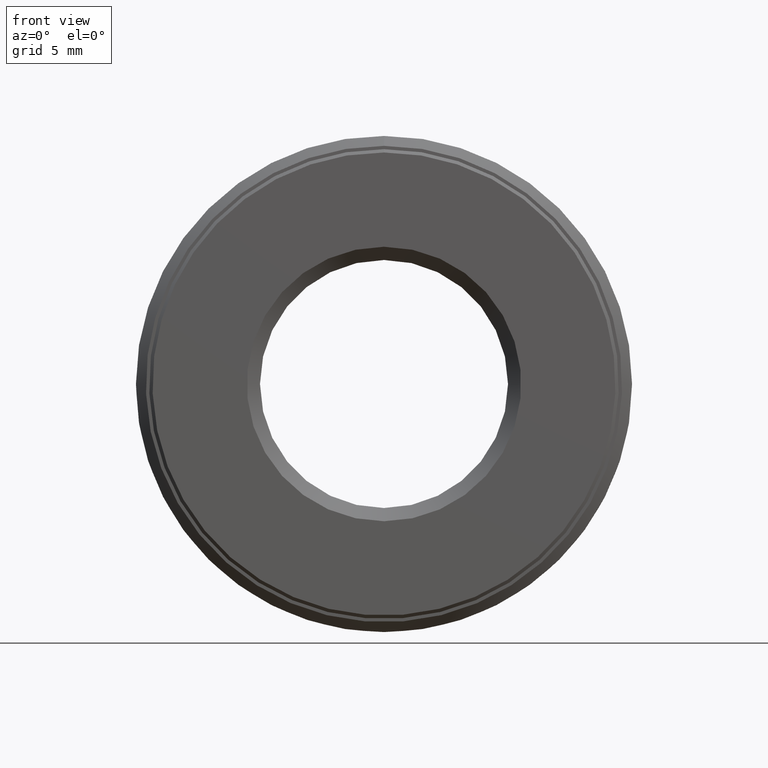
[diagram: clean part render]
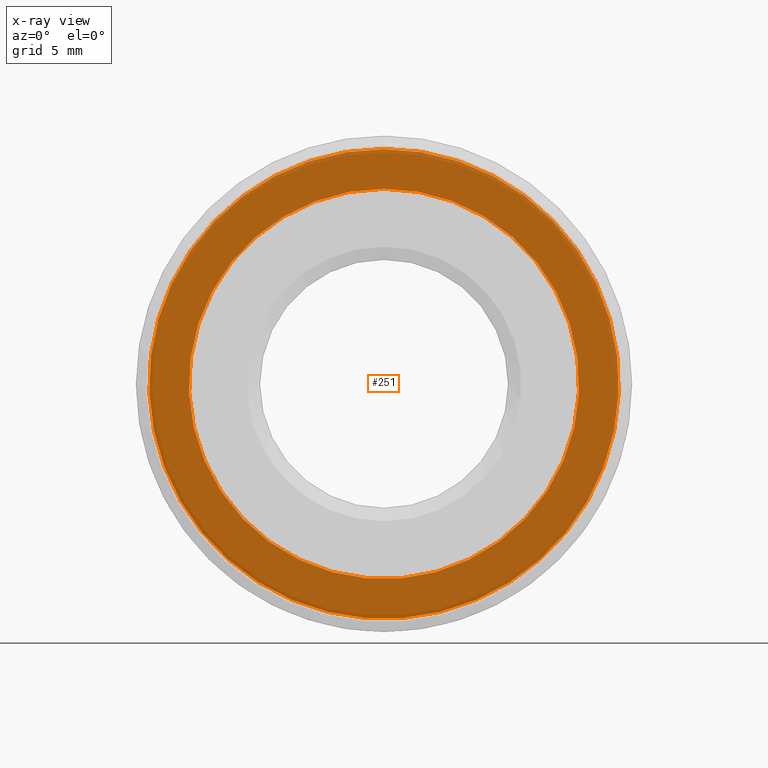
[diagram: x-ray — body ghosted, one internal face saturated and labeled with its STEP entity id]
A machine part, front view, then the same camera in x-ray: the body is ghosted and one INTERNAL B-rep face — a face not visible from any outside direction — is saturated and labeled: STEP entity #251.
In plain terms, the highlighted planar face has unit normal (-0, 1, 0).
Its self-contained STEP definition (entity closure, byte-faithful):
#50 = DIRECTION ( 'NONE',  ( 0.0000000000000000000, 0.0000000000000000000, 1.000000000000000000 ) ) ;
#58 = AXIS2_PLACEMENT_3D ( 'NONE', #141, #142, #50 ) ;
#81 = EDGE_LOOP ( 'NONE', ( #159 ) ) ;
#89 = DIRECTION ( 'NONE',  ( -0.0000000000000000000, 1.000000000000000000, 0.0000000000000000000 ) ) ;
#93 = FACE_BOUND ( 'NONE', #81, .T. ) ;
#106 = CARTESIAN_POINT ( 'NONE',  ( 0.0000000000000000000, 0.2774999999999999700, 0.3550000000000000400 ) ) ;
#139 = CARTESIAN_POINT ( 'NONE',  ( 0.0000000000000000000, 0.2774999999999999700, 0.0000000000000000000 ) ) ;
#141 = CARTESIAN_POINT ( 'NONE',  ( 0.0000000000000000000, 0.2774999999999999700, 0.0000000000000000000 ) ) ;
#142 = DIRECTION ( 'NONE',  ( -0.0000000000000000000, 1.000000000000000000, -0.0000000000000000000 ) ) ;
#154 = CARTESIAN_POINT ( 'NONE',  ( 0.0000000000000000000, 0.2774999999999999700, 0.2949999999999999800 ) ) ;
#159 = ORIENTED_EDGE ( 'NONE', *, *, #244, .T. ) ;
#163 = AXIS2_PLACEMENT_3D ( 'NONE', #139, #508, #548 ) ;
#233 = FACE_OUTER_BOUND ( 'NONE', #497, .T. ) ;
#244 = EDGE_CURVE ( 'NONE', #287, #287, #481, .T. ) ;
#251 = ADVANCED_FACE ( 'NONE', ( #233, #93 ), #375, .F. ) ;
#252 = AXIS2_PLACEMENT_3D ( 'NONE', #324, #89, #413 ) ;
#262 = CIRCLE ( 'NONE', #58, 0.3550000000000000400 ) ;
#287 = VERTEX_POINT ( 'NONE', #154 ) ;
#319 = VERTEX_POINT ( 'NONE', #106 ) ;
#324 = CARTESIAN_POINT ( 'NONE',  ( 0.0000000000000000000, 0.2774999999999999700, 0.0000000000000000000 ) ) ;
#375 = PLANE ( 'NONE',  #252 ) ;
#413 = DIRECTION ( 'NONE',  ( 0.0000000000000000000, 0.0000000000000000000, 1.000000000000000000 ) ) ;
#481 = CIRCLE ( 'NONE', #163, 0.2949999999999999800 ) ;
#497 = EDGE_LOOP ( 'NONE', ( #570 ) ) ;
#498 = EDGE_CURVE ( 'NONE', #319, #319, #262, .T. ) ;
#508 = DIRECTION ( 'NONE',  ( -0.0000000000000000000, 1.000000000000000000, -0.0000000000000000000 ) ) ;
#548 = DIRECTION ( 'NONE',  ( 0.0000000000000000000, 0.0000000000000000000, 1.000000000000000000 ) ) ;
#570 = ORIENTED_EDGE ( 'NONE', *, *, #498, .F. ) ;